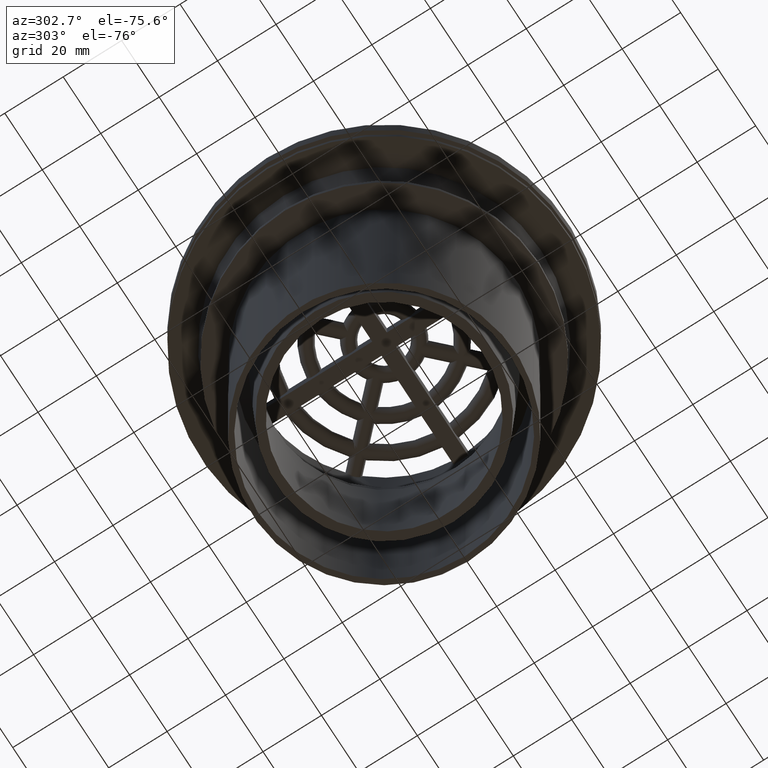
[diagram: clean part render]
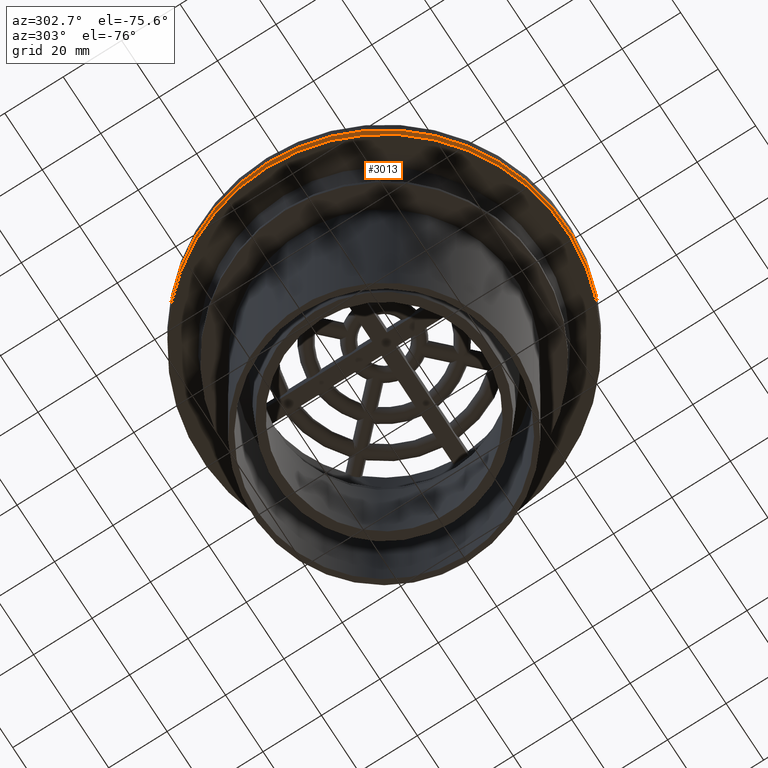
[diagram: same view with one face highlighted and labeled with its STEP entity id]
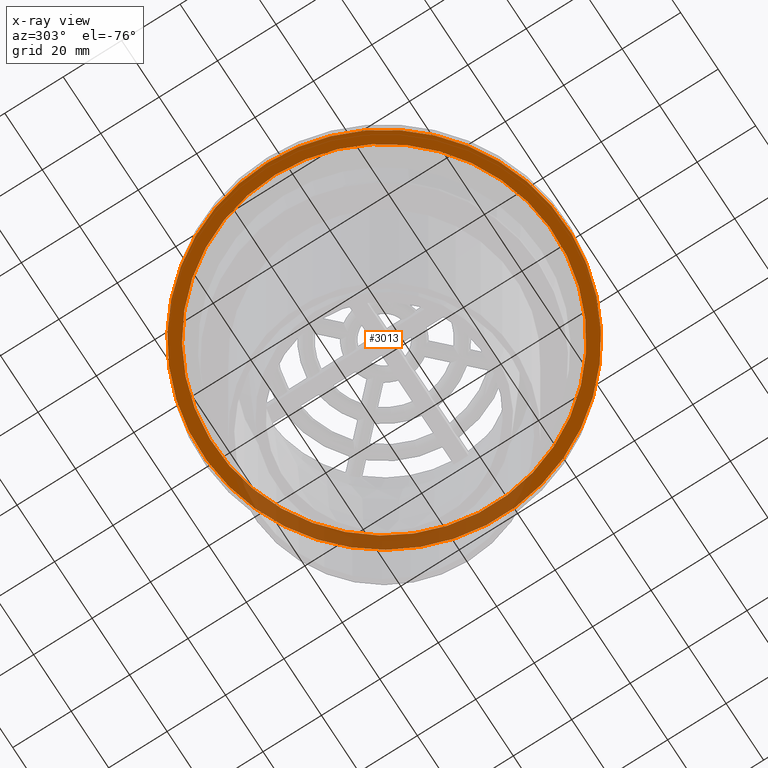
[diagram: x-ray of the same camera — body ghosted, the highlighted face saturated]
A machine part, auxiliary view. The second image highlights one B-rep face of the part: STEP entity #3013.
The next image is the same camera in x-ray: the body ghosted, the highlighted face saturated — about 25% of this face is hidden behind the body in this view.
In plain terms, the highlighted planar face has unit normal (0, 0, -1).
Its self-contained STEP definition (entity closure, byte-faithful):
#1436=ORIENTED_EDGE('',*,*,#1897,.T.);
#1437=ORIENTED_EDGE('',*,*,#1898,.F.);
#1897=EDGE_CURVE('',#2198,#2198,#2367,.T.);
#1898=EDGE_CURVE('',#2199,#2199,#2368,.T.);
#2198=VERTEX_POINT('',#5415);
#2199=VERTEX_POINT('',#5417);
#2367=CIRCLE('',#3342,62.5);
#2368=CIRCLE('',#3343,58.25);
#2573=EDGE_LOOP('',(#1436));
#2574=EDGE_LOOP('',(#1437));
#2801=FACE_BOUND('',#2573,.T.);
#2802=FACE_BOUND('',#2574,.T.);
#2887=PLANE('',#3341);
#3013=ADVANCED_FACE('',(#2801,#2802),#2887,.T.);
#3341=AXIS2_PLACEMENT_3D('',#5413,#4128,#4129);
#3342=AXIS2_PLACEMENT_3D('',#5414,#4130,#4131);
#3343=AXIS2_PLACEMENT_3D('',#5416,#4132,#4133);
#4128=DIRECTION('',(0.,0.,-1.));
#4129=DIRECTION('',(-1.,0.,0.));
#4130=DIRECTION('',(0.,0.,-1.));
#4131=DIRECTION('',(-1.,0.,0.));
#4132=DIRECTION('',(0.,0.,-1.));
#4133=DIRECTION('',(-1.,0.,0.));
#5413=CARTESIAN_POINT('',(-58.25,0.,-6.00000000000001));
#5414=CARTESIAN_POINT('',(0.,0.,-6.00000000000001));
#5415=CARTESIAN_POINT('',(-62.5,0.,-6.00000000000001));
#5416=CARTESIAN_POINT('',(0.,0.,-6.00000000000001));
#5417=CARTESIAN_POINT('',(-58.25,0.,-6.00000000000001));